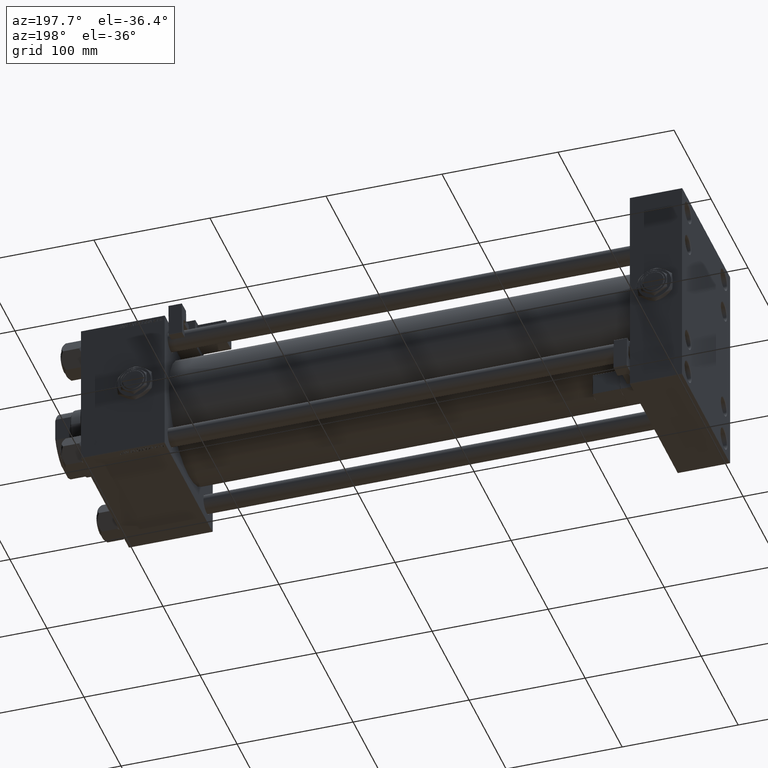
[diagram: clean part render]
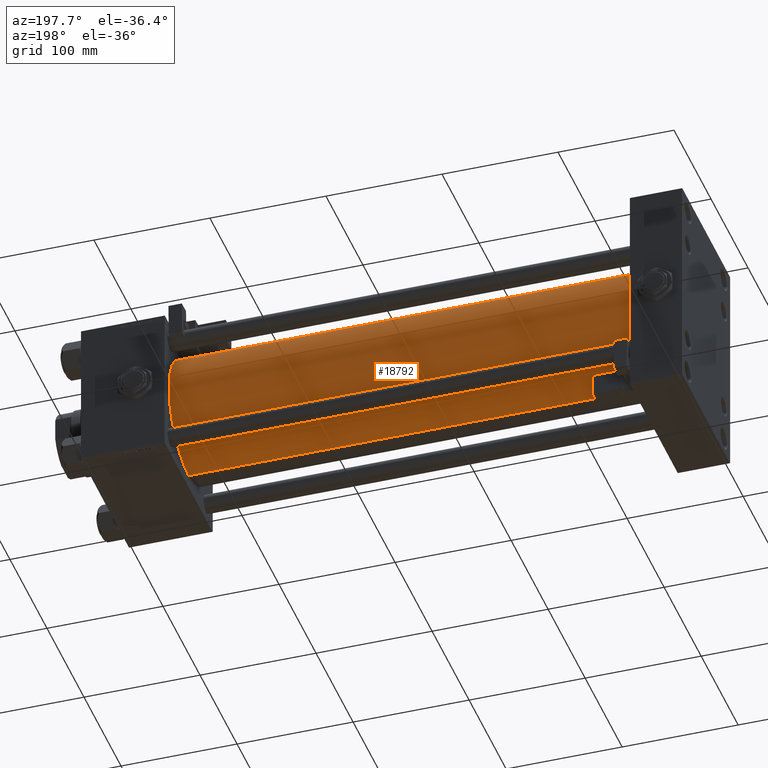
[diagram: same view with one face highlighted and labeled with its STEP entity id]
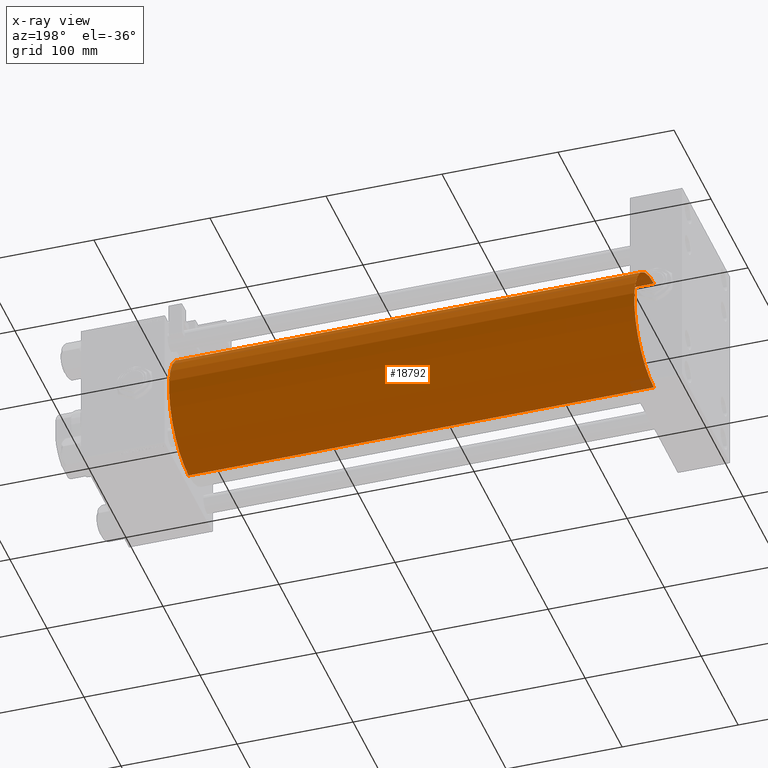
[diagram: x-ray of the same camera — body ghosted, the highlighted face saturated]
A machine part, auxiliary view. The second image highlights one B-rep face of the part: STEP entity #18792.
The next image is the same camera in x-ray: the body ghosted, the highlighted face saturated — about 1% of this face is hidden behind the body in this view.
In plain terms, the highlighted cylindrical surface (partial cylindrical patch) has radius 53 mm, axis along (-1, -0, -0).
Its self-contained STEP definition (entity closure, byte-faithful):
#762 = EDGE_CURVE ( 'NONE', #29384, #50416, #25658, .T. ) ;
#6486 = VECTOR ( 'NONE', #12384, 1000.000000000000000 ) ;
#10233 = FACE_OUTER_BOUND ( 'NONE', #29945, .T. ) ;
#11054 = DIRECTION ( 'NONE',  ( -1.000000000000000000, -0.000000000000000000, -0.000000000000000000 ) ) ;
#12384 = DIRECTION ( 'NONE',  ( -1.000000000000000000, -0.000000000000000000, -0.000000000000000000 ) ) ;
#13724 = DIRECTION ( 'NONE',  ( 1.000000000000000000, 0.000000000000000000, 0.000000000000000000 ) ) ;
#14135 = CARTESIAN_POINT ( 'NONE',  ( 446.0000000000000000, -2.602085213965210642E-15, 53.00000000000000711 ) ) ;
#14317 = ORIENTED_EDGE ( 'NONE', *, *, #33352, .F. ) ;
#15776 = EDGE_CURVE ( 'NONE', #20287, #50416, #29808, .T. ) ;
#18792 = ADVANCED_FACE ( 'NONE', ( #10233 ), #27119, .T. ) ;
#20287 = VERTEX_POINT ( 'NONE', #25881 ) ;
#21015 = CIRCLE ( 'NONE', #28107, 53.00000000000000711 ) ;
#22296 = CARTESIAN_POINT ( 'NONE',  ( 446.0000000000000000, -2.602085213965210642E-15, 0.000000000000000000 ) ) ;
#24954 = VERTEX_POINT ( 'NONE', #51750 ) ;
#25274 = CARTESIAN_POINT ( 'NONE',  ( 44.99999999999998579, -2.602085213965210642E-15, 0.000000000000000000 ) ) ;
#25658 = LINE ( 'NONE', #42556, #6486 ) ;
#25881 = CARTESIAN_POINT ( 'NONE',  ( 44.99999999999998579, 3.888542821515760888E-15, -53.00000000000000711 ) ) ;
#26811 = CARTESIAN_POINT ( 'NONE',  ( 446.0000000000000000, 3.888542821515760888E-15, -53.00000000000000711 ) ) ;
#27119 = CYLINDRICAL_SURFACE ( 'NONE', #50594, 53.00000000000000711 ) ;
#28033 = VECTOR ( 'NONE', #52041, 1000.000000000000000 ) ;
#28107 = AXIS2_PLACEMENT_3D ( 'NONE', #22296, #13724, #30601 ) ;
#29003 = ORIENTED_EDGE ( 'NONE', *, *, #762, .F. ) ;
#29384 = VERTEX_POINT ( 'NONE', #14135 ) ;
#29808 = CIRCLE ( 'NONE', #52823, 53.00000000000000711 ) ;
#29945 = EDGE_LOOP ( 'NONE', ( #14317, #41821, #51011, #29003 ) ) ;
#30601 = DIRECTION ( 'NONE',  ( 0.000000000000000000, 0.000000000000000000, -1.000000000000000000 ) ) ;
#31353 = EDGE_CURVE ( 'NONE', #24954, #20287, #44008, .T. ) ;
#33352 = EDGE_CURVE ( 'NONE', #24954, #29384, #21015, .T. ) ;
#37203 = DIRECTION ( 'NONE',  ( 1.000000000000000000, -0.000000000000000000, 0.000000000000000000 ) ) ;
#40679 = CARTESIAN_POINT ( 'NONE',  ( 446.0000000000000000, -2.602085213965210642E-15, 0.000000000000000000 ) ) ;
#41821 = ORIENTED_EDGE ( 'NONE', *, *, #31353, .T. ) ;
#42556 = CARTESIAN_POINT ( 'NONE',  ( 446.0000000000000000, -2.602085213965210642E-15, 53.00000000000000711 ) ) ;
#44008 = LINE ( 'NONE', #26811, #28033 ) ;
#44846 = DIRECTION ( 'NONE',  ( 0.000000000000000000, 0.000000000000000000, 1.000000000000000000 ) ) ;
#45268 = DIRECTION ( 'NONE',  ( 0.000000000000000000, 0.000000000000000000, 1.000000000000000000 ) ) ;
#50416 = VERTEX_POINT ( 'NONE', #53946 ) ;
#50594 = AXIS2_PLACEMENT_3D ( 'NONE', #40679, #11054, #44846 ) ;
#51011 = ORIENTED_EDGE ( 'NONE', *, *, #15776, .T. ) ;
#51750 = CARTESIAN_POINT ( 'NONE',  ( 446.0000000000000000, 3.888542821515760888E-15, -53.00000000000000711 ) ) ;
#52041 = DIRECTION ( 'NONE',  ( -1.000000000000000000, -0.000000000000000000, -0.000000000000000000 ) ) ;
#52823 = AXIS2_PLACEMENT_3D ( 'NONE', #25274, #37203, #45268 ) ;
#53946 = CARTESIAN_POINT ( 'NONE',  ( 44.99999999999998579, -2.602085213965210642E-15, 53.00000000000000711 ) ) ;